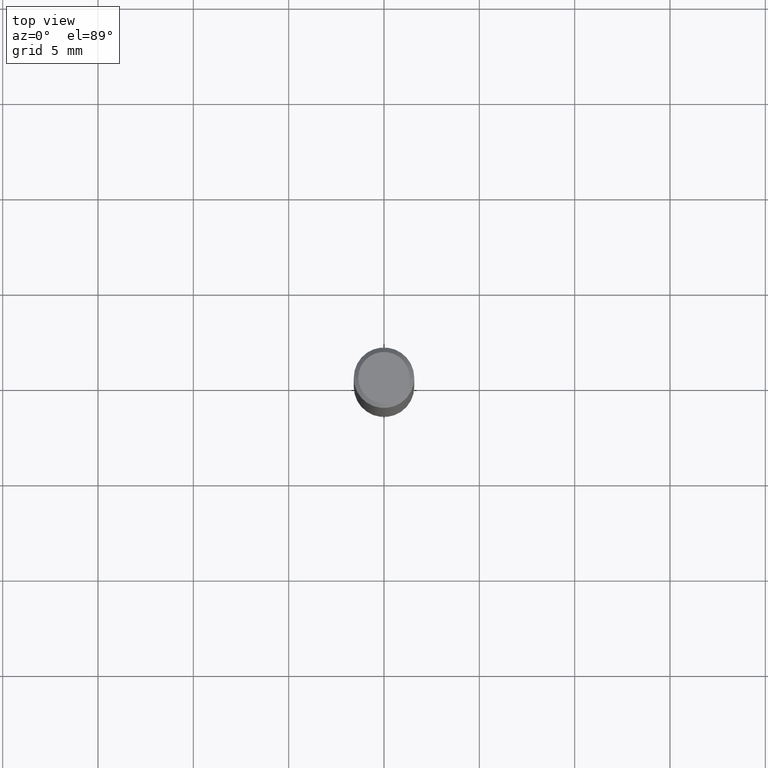
[diagram: clean part render]
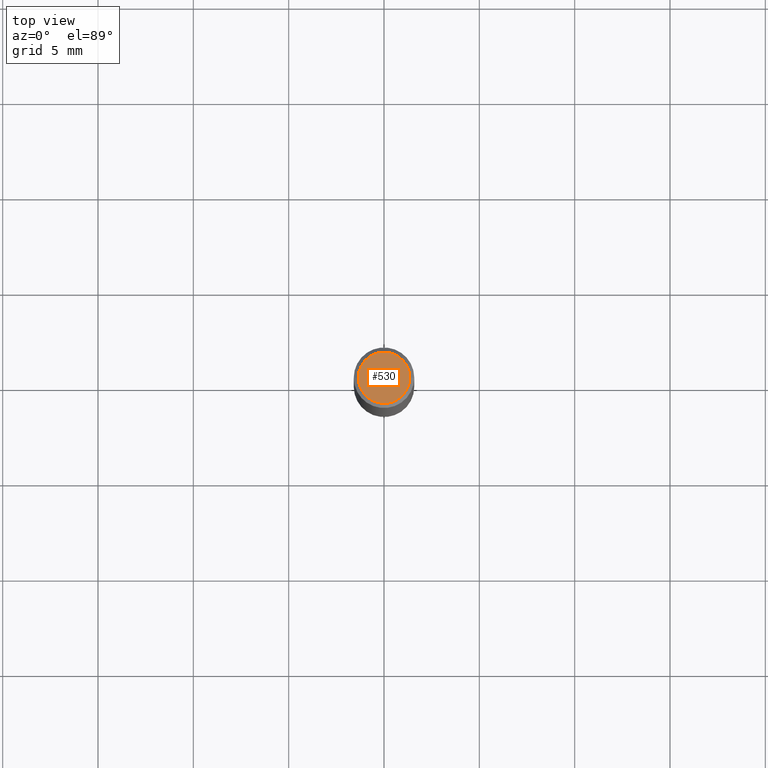
[diagram: same view with one face highlighted and labeled with its STEP entity id]
A machine part, top view. The second image highlights one B-rep face of the part: STEP entity #530.
In plain terms, the highlighted planar face has unit normal (0, -0, -1).
Its self-contained STEP definition (entity closure, byte-faithful):
#17 = DIRECTION ( 'NONE',  ( 1.000000000000000000, -6.982962677686266711E-15, 4.875930095424100059E-29 ) ) ;
#22 = AXIS2_PLACEMENT_3D ( 'NONE', #271, #452, #275 ) ;
#62 = CARTESIAN_POINT ( 'NONE',  ( 1.415359278996747967E-46, -2.020757941330909984E-32, -5.787680772770392401E-18 ) ) ;
#65 = DIRECTION ( 'NONE',  ( -2.445468806185136597E-29, 3.491481338843145583E-15, 1.000000000000000000 ) ) ;
#97 = PLANE ( 'NONE',  #22 ) ;
#106 = DIRECTION ( 'NONE',  ( 1.000000000000000000, -6.982962677686266711E-15, 4.875930095424100059E-29 ) ) ;
#108 = AXIS2_PLACEMENT_3D ( 'NONE', #160, #111, #17 ) ;
#111 = DIRECTION ( 'NONE',  ( -2.445468806185136597E-29, 3.491481338843145583E-15, 1.000000000000000000 ) ) ;
#117 = EDGE_LOOP ( 'NONE', ( #119, #579 ) ) ;
#119 = ORIENTED_EDGE ( 'NONE', *, *, #323, .T. ) ;
#160 = CARTESIAN_POINT ( 'NONE',  ( 1.415359278996747967E-46, -2.020757941330909984E-32, -5.787680772770392401E-18 ) ) ;
#212 = VERTEX_POINT ( 'NONE', #375 ) ;
#235 = EDGE_CURVE ( 'NONE', #337, #212, #531, .T. ) ;
#271 = CARTESIAN_POINT ( 'NONE',  ( 7.076796394983739835E-47, -1.010378970665454992E-32, -2.893840386385196200E-18 ) ) ;
#275 = DIRECTION ( 'NONE',  ( -1.000000000000000000, 6.982962677686265922E-15, -4.876176775795935793E-29 ) ) ;
#323 = EDGE_CURVE ( 'NONE', #212, #337, #543, .T. ) ;
#337 = VERTEX_POINT ( 'NONE', #472 ) ;
#375 = CARTESIAN_POINT ( 'NONE',  ( -0.05312499999999999861, 3.873362110279099094E-16, -5.787680772773044021E-18 ) ) ;
#420 = AXIS2_PLACEMENT_3D ( 'NONE', #62, #65, #106 ) ;
#452 = DIRECTION ( 'NONE',  ( 2.438088387897960049E-29, -3.491481338843145188E-15, -1.000000000000000000 ) ) ;
#472 = CARTESIAN_POINT ( 'NONE',  ( 0.05312499999999999861, -4.129888592719939842E-16, -5.787680772767651417E-18 ) ) ;
#499 = FACE_OUTER_BOUND ( 'NONE', #117, .T. ) ;
#530 = ADVANCED_FACE ( 'NONE', ( #499 ), #97, .F. ) ;
#531 = CIRCLE ( 'NONE', #420, 0.05312499999999999861 ) ;
#543 = CIRCLE ( 'NONE', #108, 0.05312499999999999861 ) ;
#579 = ORIENTED_EDGE ( 'NONE', *, *, #235, .T. ) ;